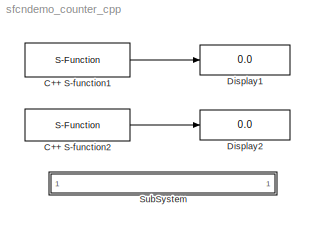
MODEL sfcndemo_counter_cpp
KIND model
BLOCK [S-Function] C++ S-function1
  FunctionName = sfun_counter_cpp
  Parameters = 1
  Ports = [0, 1]
BLOCK [S-Function] C++ S-function2
  FunctionName = sfun_counter_cpp
  Parameters = 2
  Ports = [0, 1]
BLOCK [Display] Display1
  Decimation = 1
  Ports = [1]
BLOCK [Display] Display2
  Decimation = 1
  Ports = [1]
BLOCK [SubSystem] SubSystem
  MaskDisplay = disp('matlabroot<path>');
  MaskIconFrame = on
  MaskIconOpaque = on
  MaskIconRotate = none
  MaskIconUnits = autoscale
  MinAlgLoopOccurrences = off
  OpenFcn = edit(fullfile(matlabroot,'simulink','src','sfun_counter_cpp.cpp'));
  Ports = []
  PropExecContextAcrossSSBoundary = on
  RTWSystemCode = Auto
  TreatAsAtomicUnit = off
LINE C++ S-function1:1 -> Display1:1
LINE C++ S-function2:1 -> Display2:1
note: 1 file-system path scrubbed to <path> (not preserved elsewhere — flat text is the only slx artifact)
